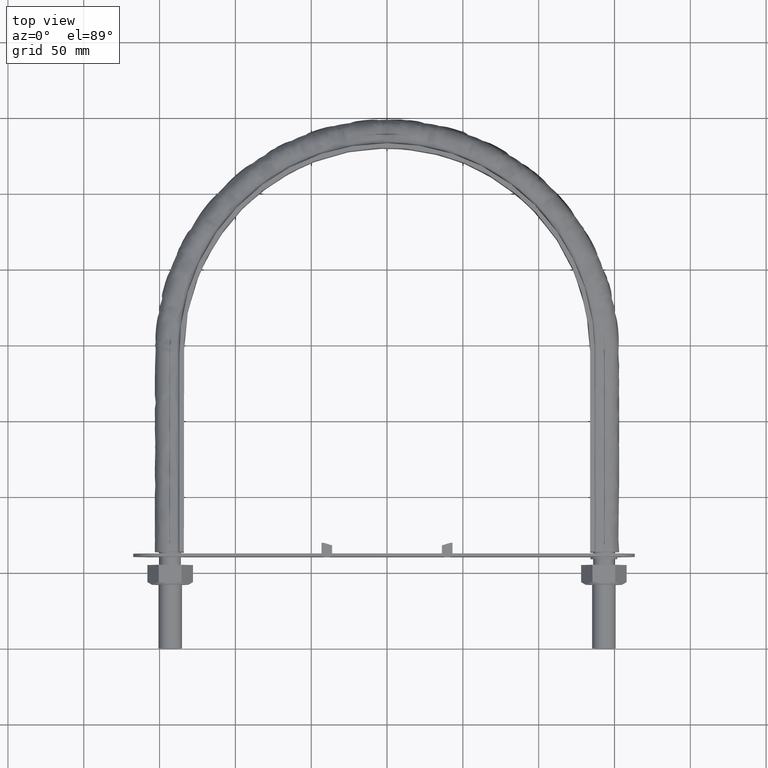
[diagram: clean part render]
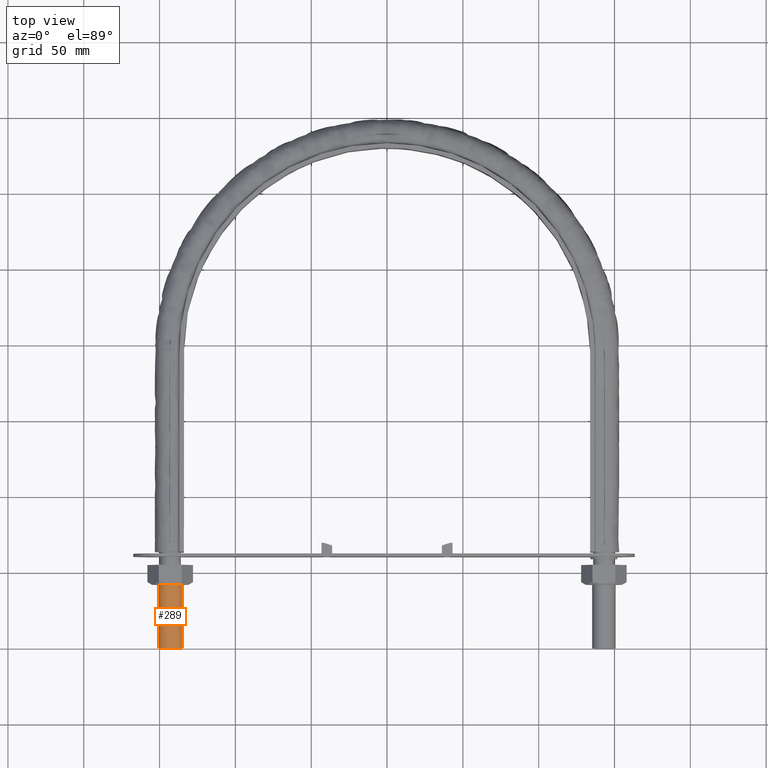
[diagram: same view with one face highlighted and labeled with its STEP entity id]
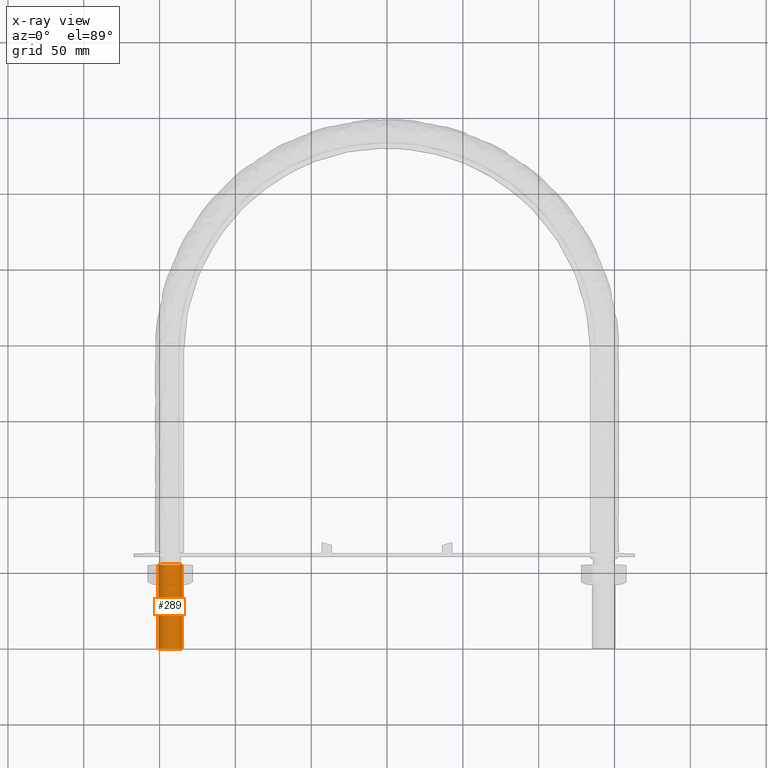
[diagram: x-ray of the same camera — body ghosted, the highlighted face saturated]
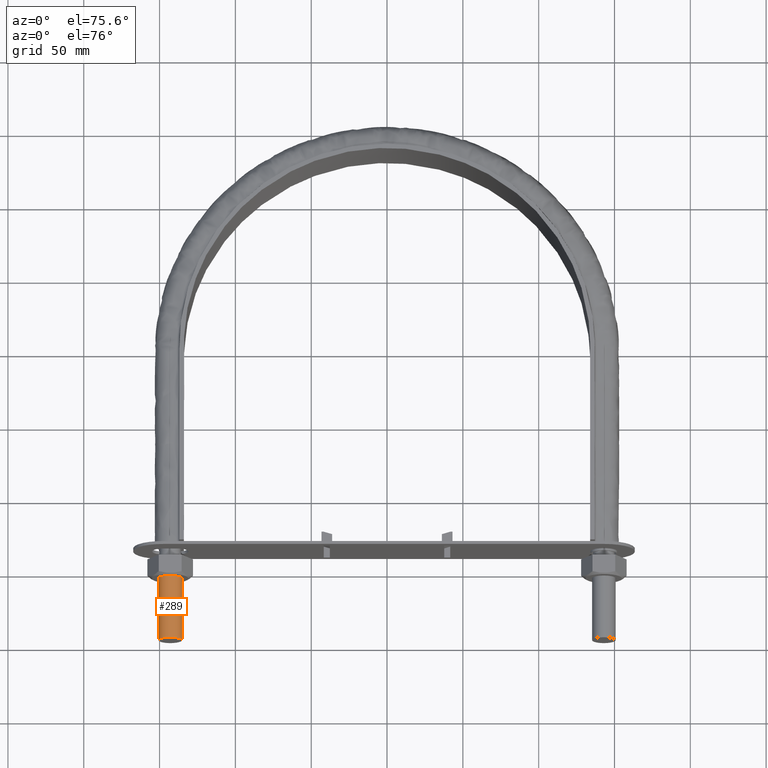
[diagram: same view with one face highlighted and labeled with its STEP entity id]
A machine part, top view. The second image highlights one B-rep face of the part: STEP entity #289.
The next image is the same camera in x-ray: the body ghosted, the highlighted face saturated — about 0% of this face is hidden behind the body in this view.
A second angle (auxiliary view) of the same face is appended — the face is thin or edge-on in the first view.
In plain terms, the highlighted cylindrical surface (bore or boss wall) has radius 7.75 mm, axis along (-0, -1, 0).
Its self-contained STEP definition (entity closure, byte-faithful):
#289 = ADVANCED_FACE( '', ( #412, #413 ), #414, .T. );
#412 = FACE_OUTER_BOUND( '', #1363, .T. );
#413 = FACE_OUTER_BOUND( '', #1364, .T. );
#414 = CYLINDRICAL_SURFACE( '', #1365, 7.75000000000001 );
#1363 = EDGE_LOOP( '', ( #2046 ) );
#1364 = EDGE_LOOP( '', ( #2047 ) );
#1365 = AXIS2_PLACEMENT_3D( '', #2048, #2049, #2050 );
#2046 = ORIENTED_EDGE( '', *, *, #2598, .F. );
#2047 = ORIENTED_EDGE( '', *, *, #2587, .T. );
#2048 = CARTESIAN_POINT( '', ( -143.000000000000, 55.0000000000001, -1.68383373650577E-014 ) );
#2049 = DIRECTION( '', ( -2.44921270764476E-016, -1.00000000000000, 3.06151588455594E-016 ) );
#2050 = DIRECTION( '', ( 1.00000000000000, -2.44921270764476E-016, -5.47382212626882E-048 ) );
#2587 = EDGE_CURVE( '', #2798, #2798, #2799, .T. );
#2598 = EDGE_CURVE( '', #2814, #2814, #2815, .T. );
#2798 = VERTEX_POINT( '', #3557 );
#2799 = CIRCLE( '', #3558, 7.75000000000001 );
#2814 = VERTEX_POINT( '', #3594 );
#2815 = CIRCLE( '', #3595, 7.75000000000001 );
#3557 = CARTESIAN_POINT( '', ( -135.250000000000, 55.0000000000001, -1.68383373650577E-014 ) );
#3558 = AXIS2_PLACEMENT_3D( '', #4124, #4125, #4126 );
#3594 = CARTESIAN_POINT( '', ( -135.250000000000, 7.11248822424931E-014, 0.000000000000000 ) );
#3595 = AXIS2_PLACEMENT_3D( '', #4136, #4137, #4138 );
#4124 = CARTESIAN_POINT( '', ( -143.000000000000, 55.0000000000001, -1.68383373650577E-014 ) );
#4125 = DIRECTION( '', ( -2.44921270764476E-016, -1.00000000000000, 3.06151588455594E-016 ) );
#4126 = DIRECTION( '', ( 1.00000000000000, -2.44921270764476E-016, -5.47382212626882E-048 ) );
#4136 = CARTESIAN_POINT( '', ( -143.000000000000, 7.30230220909178E-014, 4.24221214785834E-047 ) );
#4137 = DIRECTION( '', ( -2.44921270764476E-016, -1.00000000000000, 3.06151588455594E-016 ) );
#4138 = DIRECTION( '', ( 1.00000000000000, -2.44921270764476E-016, -5.47382212626882E-048 ) );